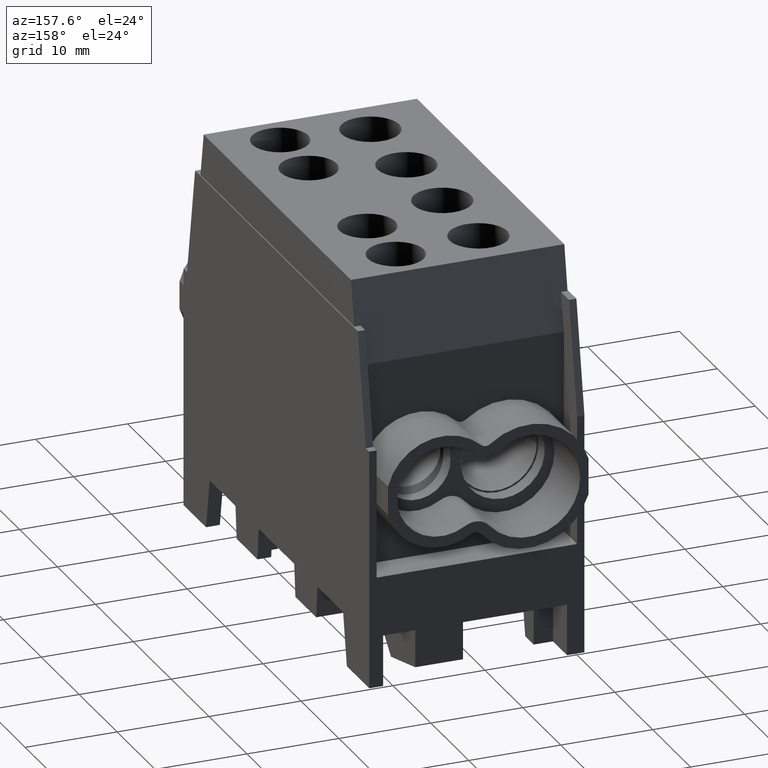
[diagram: clean part render]
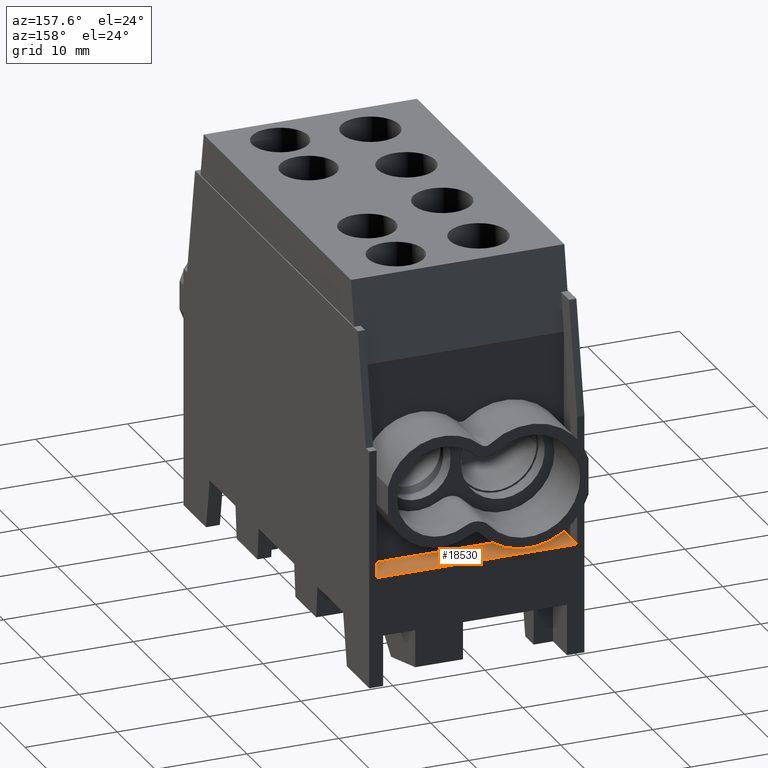
[diagram: same view with one face highlighted and labeled with its STEP entity id]
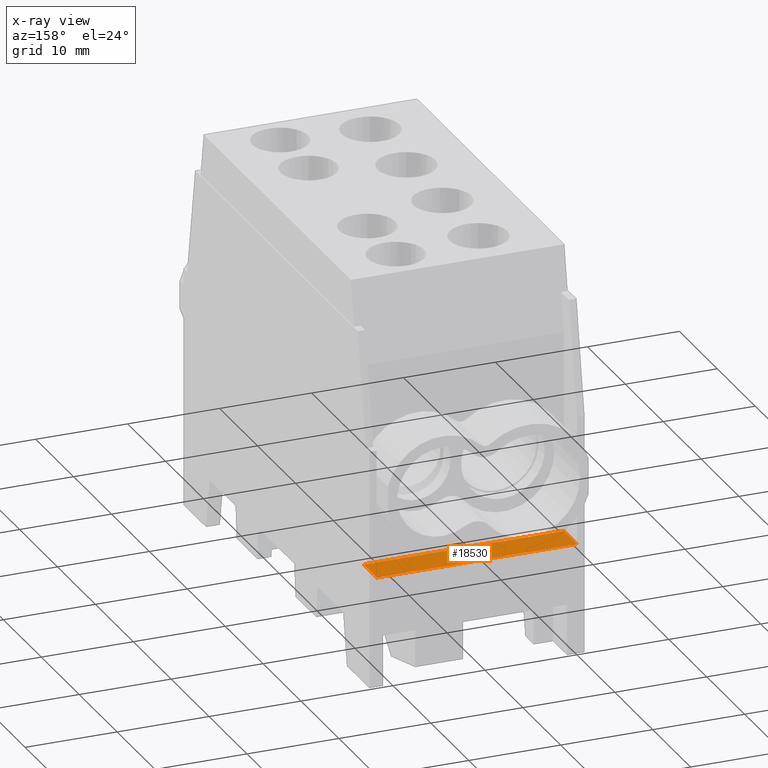
[diagram: x-ray of the same camera — body ghosted, the highlighted face saturated]
A machine part, auxiliary view. The second image highlights one B-rep face of the part: STEP entity #18530.
The next image is the same camera in x-ray: the body ghosted, the highlighted face saturated — about 0% of this face is hidden behind the body in this view.
In plain terms, the highlighted planar face has unit normal (0, 0, -1).
Its self-contained STEP definition (entity closure, byte-faithful):
#15540=CARTESIAN_POINT('',(10.9,24.5,-1.5));
#15550=VERTEX_POINT('',#15540);
#15720=CARTESIAN_POINT('',(10.9,21.,-1.5));
#15730=VERTEX_POINT('',#15720);
#15760=CARTESIAN_POINT('',(10.9,0.,-1.5));
#15770=DIRECTION('',(0.,1.,0.));
#15780=VECTOR('',#15770,1.);
#15790=LINE('',#15760,#15780);
#15800=EDGE_CURVE('',#15730,#15550,#15790,.T.);
#15970=CARTESIAN_POINT('',(-10.9,0.,-1.5));
#15980=DIRECTION('',(0.,-1.,0.));
#15990=VECTOR('',#15980,1.);
#16000=LINE('',#15970,#15990);
#16010=CARTESIAN_POINT('',(-10.9,24.5,-1.5));
#16020=VERTEX_POINT('',#16010);
#16030=CARTESIAN_POINT('',(-10.9,21.,-1.5));
#16040=VERTEX_POINT('',#16030);
#16050=EDGE_CURVE('',#16020,#16040,#16000,.T.);
#18320=CARTESIAN_POINT('',(10.2,19.5,-1.5));
#18330=DIRECTION('',(0.,0.,-1.));
#18340=DIRECTION('',(-1.,0.,0.));
#18350=AXIS2_PLACEMENT_3D('',#18320,#18330,#18340);
#18360=PLANE('',#18350);
#18370=CARTESIAN_POINT('',(3.5527136788005E-15,21.,-1.5));
#18380=DIRECTION('',(-1.,0.,0.));
#18390=VECTOR('',#18380,1.);
#18400=LINE('',#18370,#18390);
#18410=EDGE_CURVE('',#15730,#16040,#18400,.T.);
#18420=ORIENTED_EDGE('',*,*,#18410,.F.);
#18430=ORIENTED_EDGE('',*,*,#16050,.T.);
#18440=CARTESIAN_POINT('',(3.5527136788005E-15,24.5,-1.5));
#18450=DIRECTION('',(1.,0.,0.));
#18460=VECTOR('',#18450,1.);
#18470=LINE('',#18440,#18460);
#18480=EDGE_CURVE('',#16020,#15550,#18470,.T.);
#18490=ORIENTED_EDGE('',*,*,#18480,.F.);
#18500=ORIENTED_EDGE('',*,*,#15800,.T.);
#18510=EDGE_LOOP('',(#18500,#18490,#18430,#18420));
#18520=FACE_OUTER_BOUND('',#18510,.T.);
#18530=ADVANCED_FACE('',(#18520),#18360,.F.);